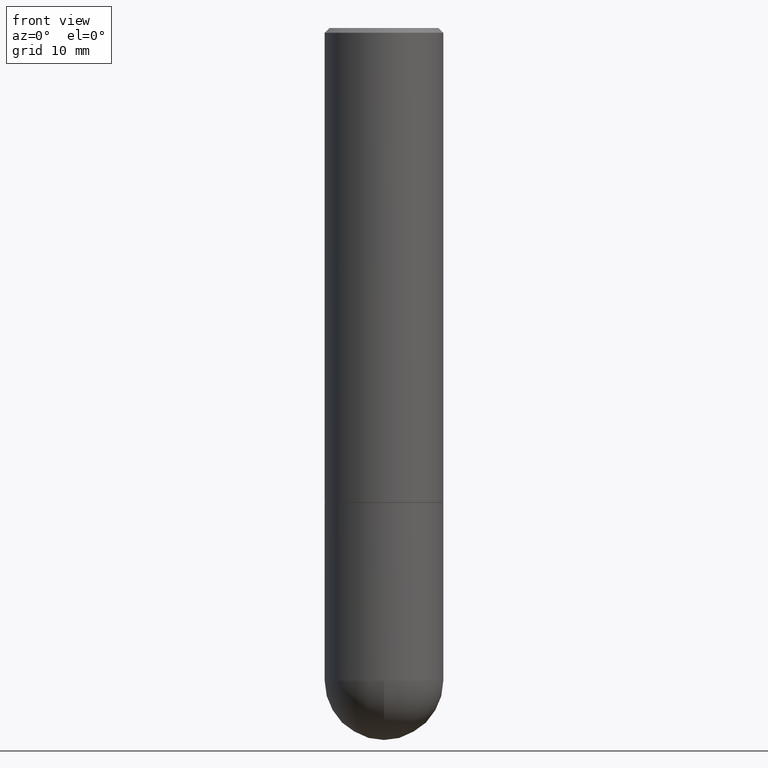
[diagram: clean part render]
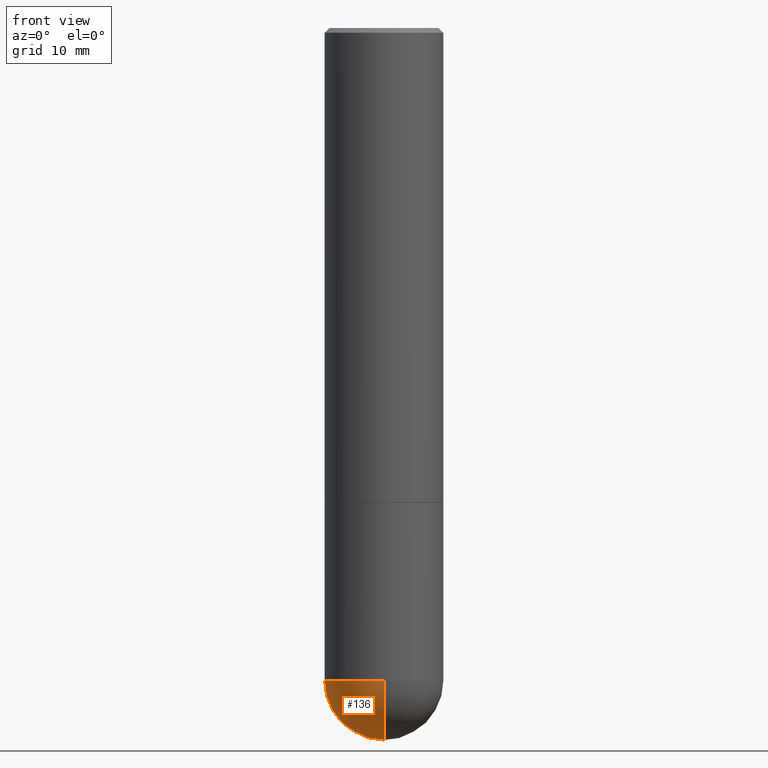
[diagram: same view with one face highlighted and labeled with its STEP entity id]
A machine part, front view. The second image highlights one B-rep face of the part: STEP entity #136.
In plain terms, the highlighted spherical surface has radius 6.35 mm.
Its self-contained STEP definition (entity closure, byte-faithful):
#7 = EDGE_CURVE ( 'NONE', #353, #130, #346, .T. ) ;
#33 = ORIENTED_EDGE ( 'NONE', *, *, #323, .F. ) ;
#51 = SPHERICAL_SURFACE ( 'NONE', #190, 0.2500000000000001110 ) ;
#54 = AXIS2_PLACEMENT_3D ( 'NONE', #304, #133, #268 ) ;
#69 = DIRECTION ( 'NONE',  ( -1.000000000000000000, 7.105427357601001070E-15, -4.926315508542082329E-29 ) ) ;
#75 = CARTESIAN_POINT ( 'NONE',  ( -0.2500000000000000000, -6.515911340352222020E-15, -2.750000000000000000 ) ) ;
#86 = EDGE_CURVE ( 'NONE', #353, #231, #350, .T. ) ;
#96 = AXIS2_PLACEMENT_3D ( 'NONE', #246, #367, #153 ) ;
#109 = CARTESIAN_POINT ( 'NONE',  ( 6.725039217009124520E-29, -9.601573681818649859E-15, -2.750000000000000000 ) ) ;
#123 = ORIENTED_EDGE ( 'NONE', *, *, #7, .F. ) ;
#130 = VERTEX_POINT ( 'NONE', #276 ) ;
#133 = DIRECTION ( 'NONE',  ( 1.000000000000000000, -6.982962677686265922E-15, 4.883557194083112340E-29 ) ) ;
#136 = ADVANCED_FACE ( 'NONE', ( #314 ), #51, .T. ) ;
#153 = DIRECTION ( 'NONE',  ( 1.000000000000000000, -6.982962677686262766E-15, 0.000000000000000000 ) ) ;
#162 = AXIS2_PLACEMENT_3D ( 'NONE', #109, #249, #217 ) ;
#164 = EDGE_LOOP ( 'NONE', ( #123, #348, #169, #33 ) ) ;
#169 = ORIENTED_EDGE ( 'NONE', *, *, #395, .F. ) ;
#189 = DIRECTION ( 'NONE',  ( 6.982962677686265922E-15, 1.000000000000000000, -4.370956789862818783E-15 ) ) ;
#190 = AXIS2_PLACEMENT_3D ( 'NONE', #282, #278, #189 ) ;
#217 = DIRECTION ( 'NONE',  ( 1.000000000000000000, -6.982962677686262766E-15, 0.000000000000000000 ) ) ;
#231 = VERTEX_POINT ( 'NONE', #340 ) ;
#246 = CARTESIAN_POINT ( 'NONE',  ( 6.725039217009124520E-29, -9.601573681818649859E-15, -2.750000000000000000 ) ) ;
#249 = DIRECTION ( 'NONE',  ( -2.445468806185136597E-29, 3.491481338843145583E-15, 1.000000000000000000 ) ) ;
#268 = DIRECTION ( 'NONE',  ( 6.982962677686266711E-15, 1.000000000000000000, 0.000000000000000000 ) ) ;
#276 = CARTESIAN_POINT ( 'NONE',  ( 1.745740669421632745E-15, 0.2499999999999902300, -2.750000000000000888 ) ) ;
#278 = DIRECTION ( 'NONE',  ( -1.000000000000000000, 6.982962677686265922E-15, -4.883557194083113462E-29 ) ) ;
#282 = CARTESIAN_POINT ( 'NONE',  ( 6.393919439095240515E-29, -1.007575604995870173E-14, -2.750000000000000444 ) ) ;
#286 = CARTESIAN_POINT ( 'NONE',  ( 7.015976219256266741E-29, -1.093331829968014633E-14, -3.000000000000000888 ) ) ;
#290 = CIRCLE ( 'NONE', #96, 0.2500000000000000000 ) ;
#304 = CARTESIAN_POINT ( 'NONE',  ( 6.393919439095240515E-29, -1.007575604995870173E-14, -2.750000000000000444 ) ) ;
#310 = DIRECTION ( 'NONE',  ( -7.105427357601001859E-15, -1.000000000000000000, 0.000000000000000000 ) ) ;
#314 = FACE_OUTER_BOUND ( 'NONE', #164, .T. ) ;
#323 = EDGE_CURVE ( 'NONE', #130, #328, #365, .T. ) ;
#328 = VERTEX_POINT ( 'NONE', #75 ) ;
#340 = CARTESIAN_POINT ( 'NONE',  ( -1.776356839400184989E-15, -0.2500000000000098810, -2.749999999999998668 ) ) ;
#346 = CIRCLE ( 'NONE', #54, 0.2500000000000001110 ) ;
#348 = ORIENTED_EDGE ( 'NONE', *, *, #86, .T. ) ;
#350 = CIRCLE ( 'NONE', #383, 0.2500000000000001110 ) ;
#353 = VERTEX_POINT ( 'NONE', #286 ) ;
#362 = CARTESIAN_POINT ( 'NONE',  ( 6.393919439095240515E-29, -1.007575604995870173E-14, -2.750000000000000444 ) ) ;
#365 = CIRCLE ( 'NONE', #162, 0.2500000000000000000 ) ;
#367 = DIRECTION ( 'NONE',  ( -2.445468806185136597E-29, 3.491481338843145583E-15, 1.000000000000000000 ) ) ;
#383 = AXIS2_PLACEMENT_3D ( 'NONE', #362, #69, #310 ) ;
#395 = EDGE_CURVE ( 'NONE', #328, #231, #290, .T. ) ;